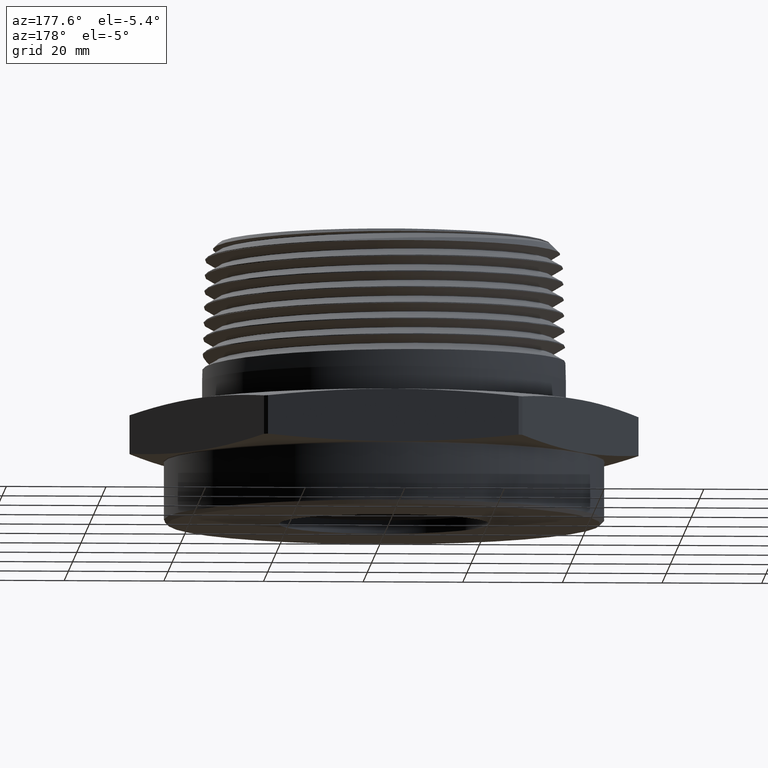
[diagram: clean part render]
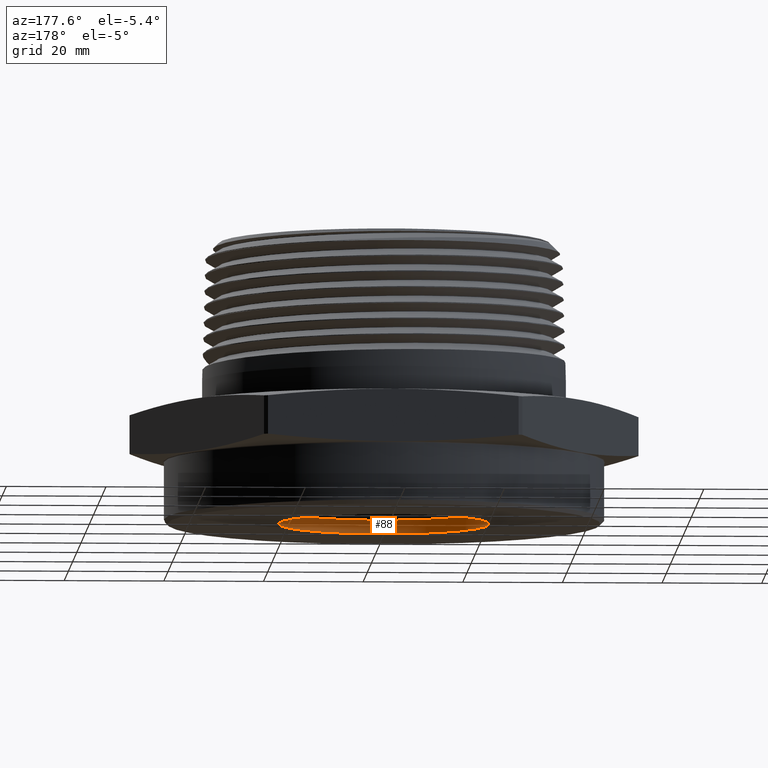
[diagram: same view with one face highlighted and labeled with its STEP entity id]
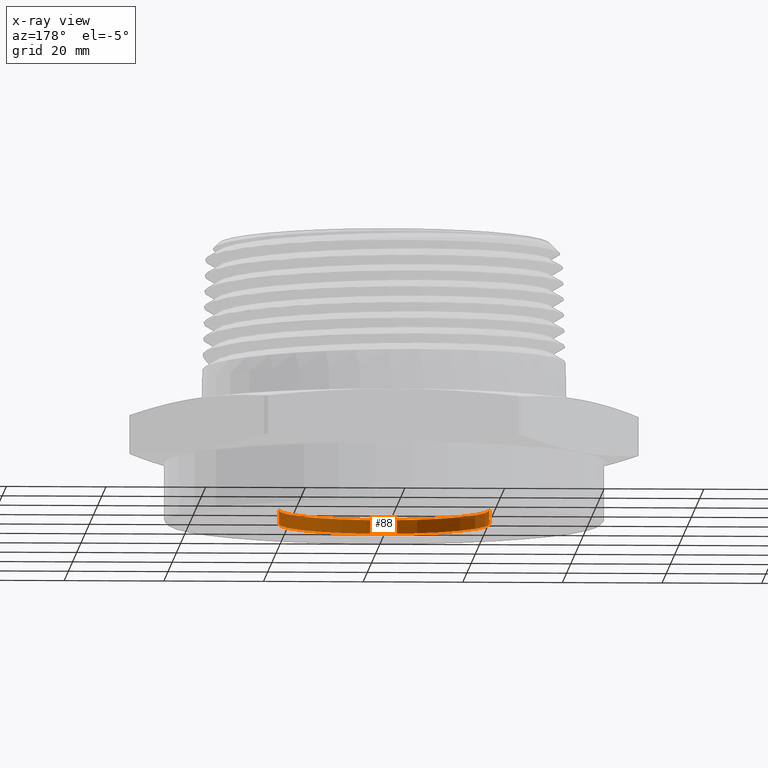
[diagram: x-ray of the same camera — body ghosted, the highlighted face saturated]
A machine part, auxiliary view. The second image highlights one B-rep face of the part: STEP entity #88.
The next image is the same camera in x-ray: the body ghosted, the highlighted face saturated — about 7% of this face is hidden behind the body in this view.
In plain terms, the highlighted cylindrical surface (partial cylindrical patch) has radius 21.1328 mm, axis along (0, 0, -1).
Its self-contained STEP definition (entity closure, byte-faithful):
#25 = ORIENTED_EDGE ( 'NONE', *, *, #3014, .F. ) ;
#88 = ADVANCED_FACE ( 'NONE', ( #8126 ), #8129, .F. ) ;
#149 = AXIS2_PLACEMENT_3D ( 'NONE', #6822, #6823, #6824 ) ;
#198 = AXIS2_PLACEMENT_3D ( 'NONE', #5772, #5773, #5774 ) ;
#980 = CIRCLE ( 'NONE', #198, 0.8319999999999998500 ) ;
#992 = LINE ( 'NONE', #5778, #994 ) ;
#994 = VECTOR ( 'NONE', #5777, 39.37007874015748100 ) ;
#2423 = AXIS2_PLACEMENT_3D ( 'NONE', #3522, #3523, #3521 ) ;
#2490 = VERTEX_POINT ( 'NONE', #3702 ) ;
#2494 = VERTEX_POINT ( 'NONE', #3707 ) ;
#2756 = CIRCLE ( 'NONE', #149, 0.8320000000000000700 ) ;
#2757 = LINE ( 'NONE', #6821, #2759 ) ;
#2759 = VECTOR ( 'NONE', #6754, 39.37007874015748100 ) ;
#3013 = EDGE_CURVE ( 'NONE', #6325, #6313, #2756, .T. ) ;
#3014 = EDGE_CURVE ( 'NONE', #2494, #6313, #2757, .T. ) ;
#3521 = DIRECTION ( 'NONE',  ( -1.000000000000000000, 0.0000000000000000000, 0.0000000000000000000 ) ) ;
#3522 = CARTESIAN_POINT ( 'NONE',  ( 4.898587196589199400E-018, 0.0000000000000000000, -0.4899999999999999900 ) ) ;
#3523 = DIRECTION ( 'NONE',  ( 3.597279148836485100E-018, -0.0000000000000000000, -1.000000000000000000 ) ) ;
#3702 = CARTESIAN_POINT ( 'NONE',  ( 0.8319999999999998500, 1.018906136890597800E-016, -0.3820000000000000100 ) ) ;
#3707 = CARTESIAN_POINT ( 'NONE',  ( -0.8319999999999998500, 0.0000000000000000000, -0.3820000000000000100 ) ) ;
#4432 = CARTESIAN_POINT ( 'NONE',  ( -0.8320000000000000700, 0.0000000000000000000, -0.4899999999999999900 ) ) ;
#4444 = CARTESIAN_POINT ( 'NONE',  ( 0.8320000000000000700, 1.018906136890598000E-016, -0.4899999999999999900 ) ) ;
#5772 = CARTESIAN_POINT ( 'NONE',  ( 4.510081048514859000E-018, 0.0000000000000000000, -0.3820000000000000100 ) ) ;
#5773 = DIRECTION ( 'NONE',  ( 3.597279148836485100E-018, -0.0000000000000000000, -1.000000000000000000 ) ) ;
#5774 = DIRECTION ( 'NONE',  ( -1.000000000000000000, 0.0000000000000000000, 0.0000000000000000000 ) ) ;
#5777 = DIRECTION ( 'NONE',  ( 3.597279148836485100E-018, -0.0000000000000000000, -1.000000000000000000 ) ) ;
#5778 = CARTESIAN_POINT ( 'NONE',  ( 0.8320000000000000700, 1.018906136890598000E-016, -0.4899999999999999900 ) ) ;
#6313 = VERTEX_POINT ( 'NONE', #4432 ) ;
#6325 = VERTEX_POINT ( 'NONE', #4444 ) ;
#6571 = EDGE_CURVE ( 'NONE', #2490, #2494, #980, .T. ) ;
#6578 = EDGE_CURVE ( 'NONE', #2490, #6325, #992, .T. ) ;
#6754 = DIRECTION ( 'NONE',  ( 3.597279148836485100E-018, -0.0000000000000000000, -1.000000000000000000 ) ) ;
#6821 = CARTESIAN_POINT ( 'NONE',  ( -0.8320000000000000700, 0.0000000000000000000, -0.4899999999999999900 ) ) ;
#6822 = CARTESIAN_POINT ( 'NONE',  ( 4.898587196589199400E-018, 0.0000000000000000000, -0.4899999999999999900 ) ) ;
#6823 = DIRECTION ( 'NONE',  ( 3.597279148836485100E-018, -0.0000000000000000000, -1.000000000000000000 ) ) ;
#6824 = DIRECTION ( 'NONE',  ( -1.000000000000000000, 0.0000000000000000000, 0.0000000000000000000 ) ) ;
#7978 = ORIENTED_EDGE ( 'NONE', *, *, #6571, .F. ) ;
#7985 = ORIENTED_EDGE ( 'NONE', *, *, #6578, .T. ) ;
#8007 = ORIENTED_EDGE ( 'NONE', *, *, #3013, .T. ) ;
#8023 = EDGE_LOOP ( 'NONE', ( #7978, #7985, #8007, #25 ) ) ;
#8126 = FACE_OUTER_BOUND ( 'NONE', #8023, .T. ) ;
#8129 = CYLINDRICAL_SURFACE ( 'NONE', #2423, 0.8320000000000000700 ) ;